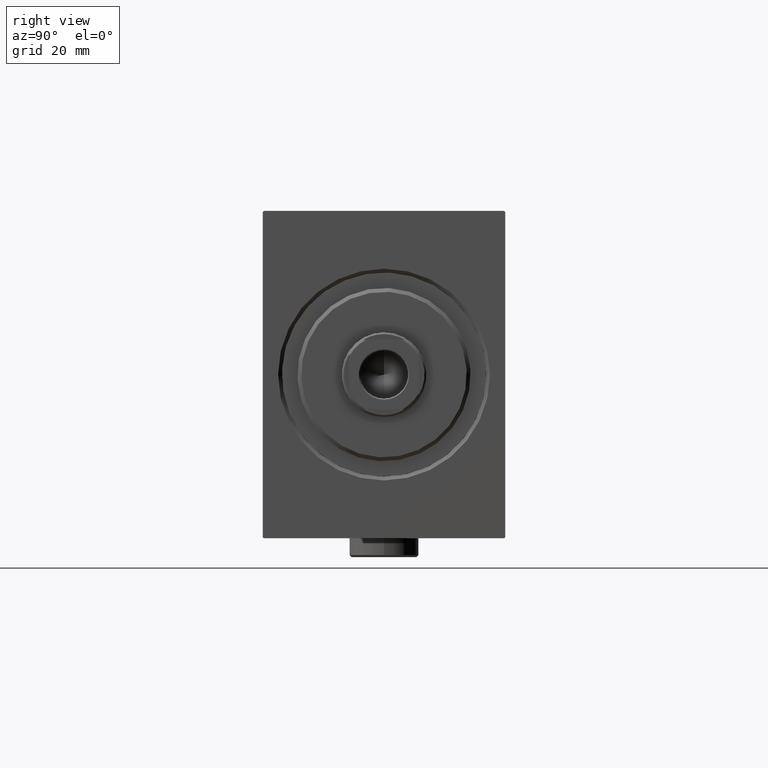
[diagram: clean part render]
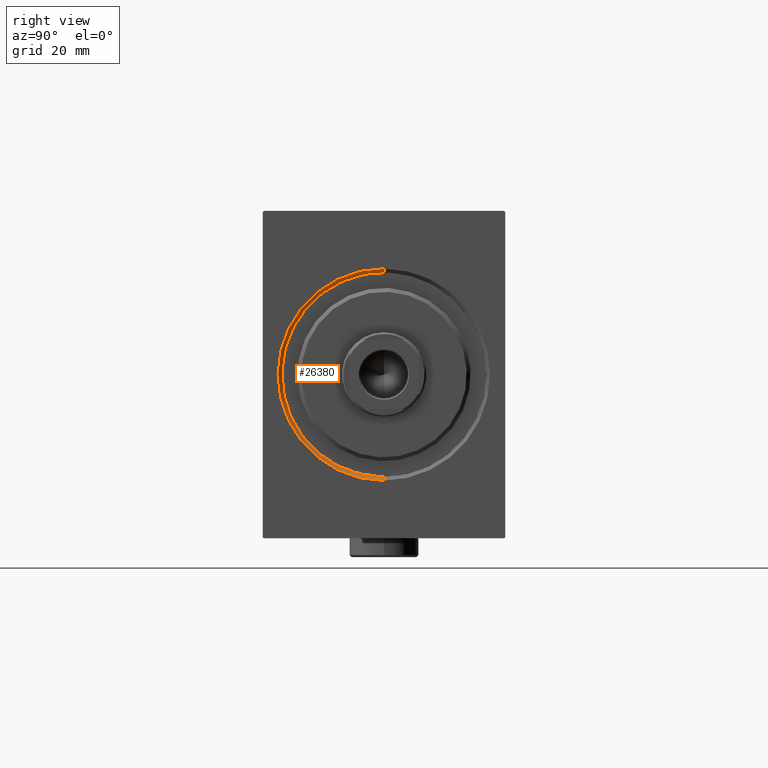
[diagram: same view with one face highlighted and labeled with its STEP entity id]
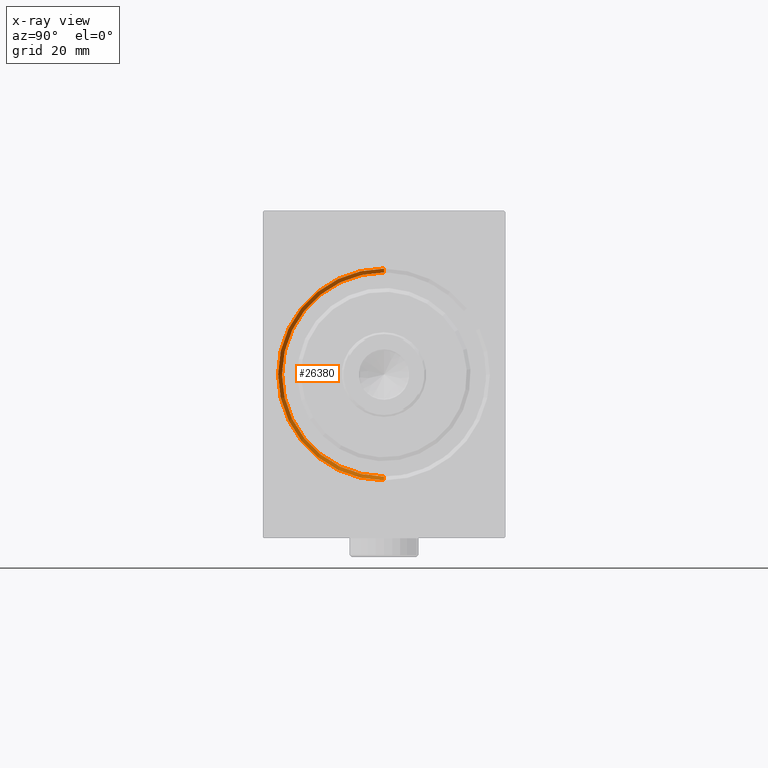
[diagram: x-ray of the same camera — body ghosted, the highlighted face saturated]
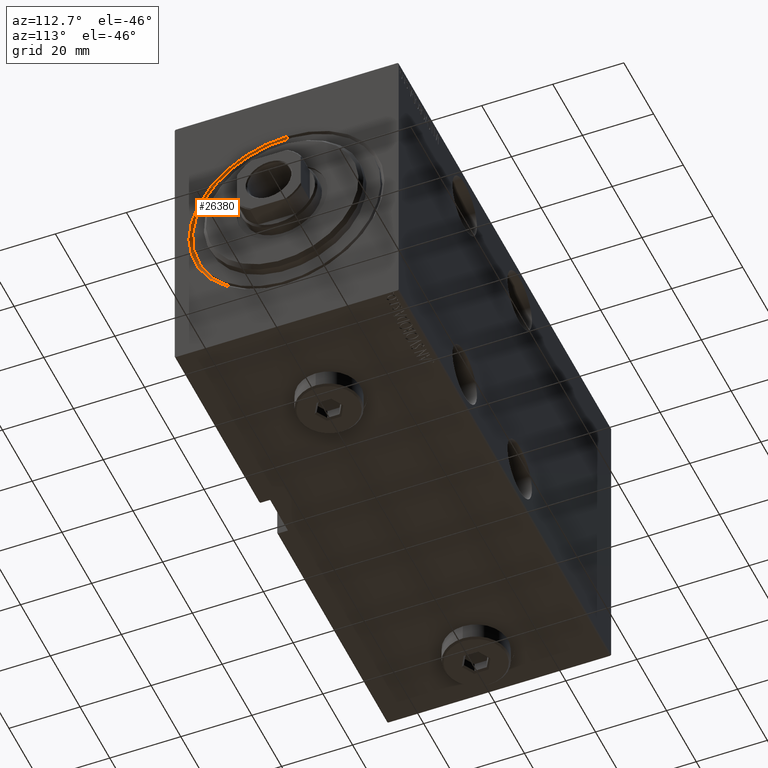
[diagram: same view with one face highlighted and labeled with its STEP entity id]
A machine part, right view. The second image highlights one B-rep face of the part: STEP entity #26380.
The next image is the same camera in x-ray: the body ghosted, the highlighted face saturated — about 0% of this face is hidden behind the body in this view.
A second angle (auxiliary view) of the same face is appended — the face is thin or edge-on in the first view.
In plain terms, the highlighted conical surface has half-angle 45 deg.
Its self-contained STEP definition (entity closure, byte-faithful):
#528 = DIRECTION ( 'NONE',  ( -0.7071067811865500152, 8.659560562354903276E-17, -0.7071067811865451302 ) ) ;
#530 = FACE_OUTER_BOUND ( 'NONE', #9231, .T. ) ;
#745 = CARTESIAN_POINT ( 'NONE',  ( 1.000000000000028644, 0.000000000000000000, 0.000000000000000000 ) ) ;
#1691 = VECTOR ( 'NONE', #528, 1000.000000000000114 ) ;
#1780 = DIRECTION ( 'NONE',  ( -1.000000000000000000, 0.000000000000000000, 0.000000000000000000 ) ) ;
#2757 = AXIS2_PLACEMENT_3D ( 'NONE', #13642, #17232, #37451 ) ;
#4602 = CARTESIAN_POINT ( 'NONE',  ( 0.000000000000000000, 3.367778697655224463E-15, -27.50000000000002487 ) ) ;
#5716 = VERTEX_POINT ( 'NONE', #8072 ) ;
#6015 = VERTEX_POINT ( 'NONE', #25240 ) ;
#6619 = EDGE_CURVE ( 'NONE', #34597, #5716, #10581, .T. ) ;
#7540 = VERTEX_POINT ( 'NONE', #4602 ) ;
#8072 = CARTESIAN_POINT ( 'NONE',  ( 1.000000000000028644, 3.245314017740486554E-15, -26.50000000000000355 ) ) ;
#9231 = EDGE_LOOP ( 'NONE', ( #35089, #23165, #27397, #15947 ) ) ;
#10419 = DIRECTION ( 'NONE',  ( -1.000000000000000000, 0.000000000000000000, 0.000000000000000000 ) ) ;
#10581 = CIRCLE ( 'NONE', #37840, 26.50000000000000355 ) ;
#10865 = LINE ( 'NONE', #35106, #1691 ) ;
#13642 = CARTESIAN_POINT ( 'NONE',  ( 0.000000000000000000, 0.000000000000000000, 0.000000000000000000 ) ) ;
#13821 = EDGE_CURVE ( 'NONE', #7540, #6015, #44340, .T. ) ;
#15270 = CARTESIAN_POINT ( 'NONE',  ( 1.000000000000028644, 0.000000000000000000, 0.000000000000000000 ) ) ;
#15947 = ORIENTED_EDGE ( 'NONE', *, *, #13821, .F. ) ;
#17232 = DIRECTION ( 'NONE',  ( 1.000000000000000000, 0.000000000000000000, 0.000000000000000000 ) ) ;
#18075 = VECTOR ( 'NONE', #33252, 1000.000000000000114 ) ;
#23165 = ORIENTED_EDGE ( 'NONE', *, *, #6619, .F. ) ;
#24505 = CONICAL_SURFACE ( 'NONE', #31645, 26.50000000000000355, 0.7853981633974447263 ) ;
#25240 = CARTESIAN_POINT ( 'NONE',  ( 0.000000000000000000, 0.000000000000000000, 27.50000000000002487 ) ) ;
#26380 = ADVANCED_FACE ( 'NONE', ( #530 ), #24505, .F. ) ;
#27240 = DIRECTION ( 'NONE',  ( 0.000000000000000000, 0.000000000000000000, 1.000000000000000000 ) ) ;
#27397 = ORIENTED_EDGE ( 'NONE', *, *, #28236, .T. ) ;
#28010 = CARTESIAN_POINT ( 'NONE',  ( 1.000000000000028644, 0.000000000000000000, 26.50000000000000355 ) ) ;
#28236 = EDGE_CURVE ( 'NONE', #34597, #6015, #29650, .T. ) ;
#29160 = DIRECTION ( 'NONE',  ( 0.000000000000000000, 0.000000000000000000, -1.000000000000000000 ) ) ;
#29650 = LINE ( 'NONE', #36194, #18075 ) ;
#31645 = AXIS2_PLACEMENT_3D ( 'NONE', #745, #10419, #27240 ) ;
#32114 = EDGE_CURVE ( 'NONE', #5716, #7540, #10865, .T. ) ;
#33252 = DIRECTION ( 'NONE',  ( -0.7071067811865500152, 0.000000000000000000, 0.7071067811865451302 ) ) ;
#34597 = VERTEX_POINT ( 'NONE', #28010 ) ;
#35089 = ORIENTED_EDGE ( 'NONE', *, *, #32114, .F. ) ;
#35106 = CARTESIAN_POINT ( 'NONE',  ( 1.000000000000028644, 3.245314017740486554E-15, -26.50000000000000355 ) ) ;
#36194 = CARTESIAN_POINT ( 'NONE',  ( 1.000000000000028644, 0.000000000000000000, 26.50000000000000355 ) ) ;
#37451 = DIRECTION ( 'NONE',  ( 0.000000000000000000, 0.000000000000000000, -1.000000000000000000 ) ) ;
#37840 = AXIS2_PLACEMENT_3D ( 'NONE', #15270, #1780, #29160 ) ;
#44340 = CIRCLE ( 'NONE', #2757, 27.50000000000002487 ) ;